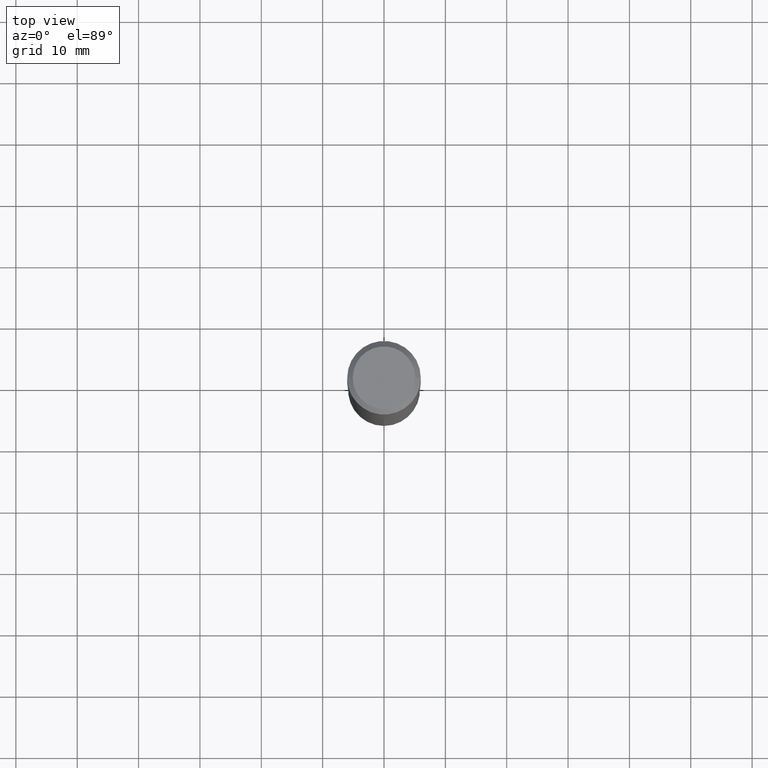
[diagram: clean part render]
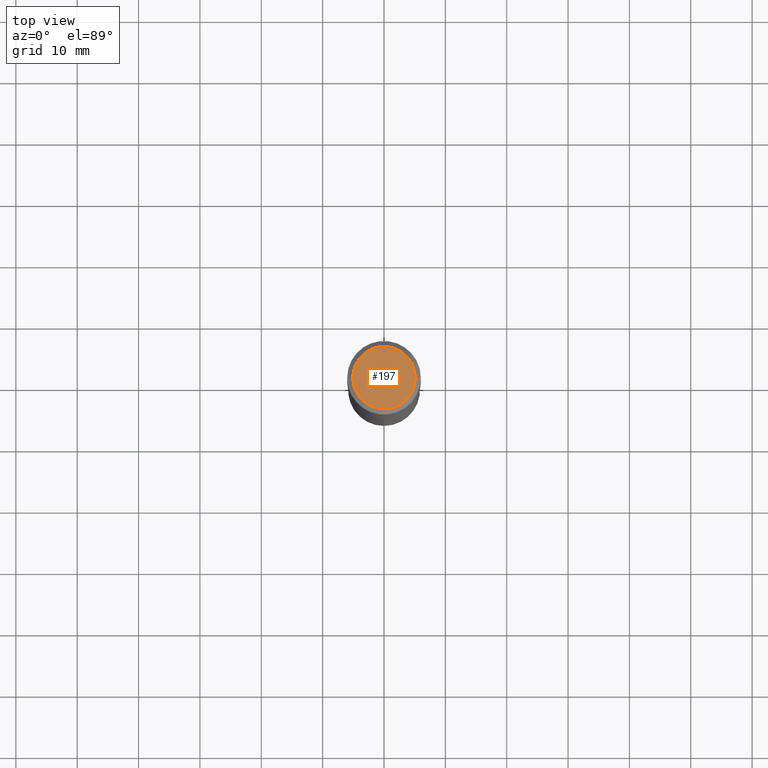
[diagram: same view with one face highlighted and labeled with its STEP entity id]
A machine part, top view. The second image highlights one B-rep face of the part: STEP entity #197.
In plain terms, the highlighted planar face has unit normal (0, -0, -1).
Its self-contained STEP definition (entity closure, byte-faithful):
#6 = EDGE_CURVE ( 'NONE', #470, #48, #251, .T. ) ;
#13 = CARTESIAN_POINT ( 'NONE',  ( -5.008488096090115757E-47, 7.150793614331959538E-33, 2.048068690724057264E-18 ) ) ;
#37 = CARTESIAN_POINT ( 'NONE',  ( -1.001697619218023151E-46, 1.430158722866391908E-32, 4.096137381448114529E-18 ) ) ;
#48 = VERTEX_POINT ( 'NONE', #258 ) ;
#50 = EDGE_CURVE ( 'NONE', #48, #470, #187, .T. ) ;
#57 = DIRECTION ( 'NONE',  ( 1.000000000000000000, -6.982962677686266711E-15, 4.876140833081945105E-29 ) ) ;
#65 = CARTESIAN_POINT ( 'NONE',  ( 0.2007700000000000040, -1.560767496960719672E-15, 4.096137381458473721E-18 ) ) ;
#68 = DIRECTION ( 'NONE',  ( 1.000000000000000000, -6.982962677686266711E-15, 4.876140833081945105E-29 ) ) ;
#89 = DIRECTION ( 'NONE',  ( 2.438088387897960049E-29, -3.491481338843145188E-15, -1.000000000000000000 ) ) ;
#117 = AXIS2_PLACEMENT_3D ( 'NONE', #13, #89, #128 ) ;
#128 = DIRECTION ( 'NONE',  ( -1.000000000000000000, 6.982962677686265922E-15, -4.876176775795935793E-29 ) ) ;
#187 = CIRCLE ( 'NONE', #299, 0.2007700000000000040 ) ;
#197 = ADVANCED_FACE ( 'NONE', ( #326 ), #357, .F. ) ;
#223 = DIRECTION ( 'NONE',  ( -2.445468806185136597E-29, 3.491481338843145583E-15, 1.000000000000000000 ) ) ;
#246 = CARTESIAN_POINT ( 'NONE',  ( -1.001697619218023151E-46, 1.430158722866391908E-32, 4.096137381448114529E-18 ) ) ;
#251 = CIRCLE ( 'NONE', #451, 0.2007700000000000040 ) ;
#254 = ORIENTED_EDGE ( 'NONE', *, *, #50, .T. ) ;
#258 = CARTESIAN_POINT ( 'NONE',  ( -0.2007700000000000040, 1.463821008716677338E-15, 4.096137381438094301E-18 ) ) ;
#274 = ORIENTED_EDGE ( 'NONE', *, *, #6, .T. ) ;
#299 = AXIS2_PLACEMENT_3D ( 'NONE', #37, #223, #68 ) ;
#326 = FACE_OUTER_BOUND ( 'NONE', #363, .T. ) ;
#357 = PLANE ( 'NONE',  #117 ) ;
#363 = EDGE_LOOP ( 'NONE', ( #254, #274 ) ) ;
#397 = DIRECTION ( 'NONE',  ( -2.445468806185136597E-29, 3.491481338843145583E-15, 1.000000000000000000 ) ) ;
#451 = AXIS2_PLACEMENT_3D ( 'NONE', #246, #397, #57 ) ;
#470 = VERTEX_POINT ( 'NONE', #65 ) ;